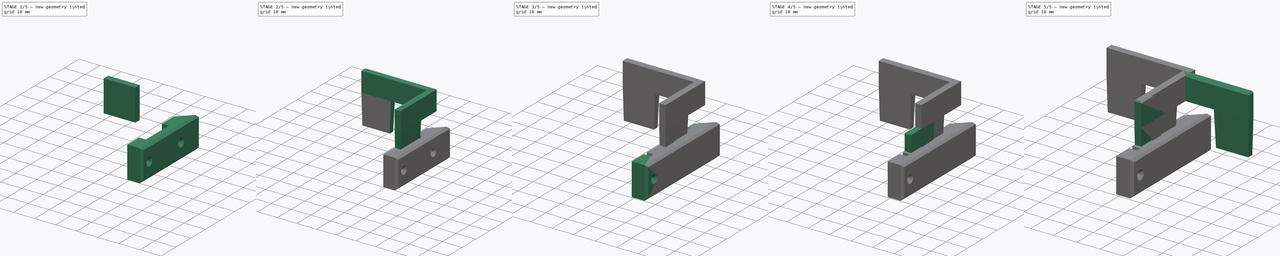
[diagram: build sequence overview — one tinted view per stage of 5, left to right]
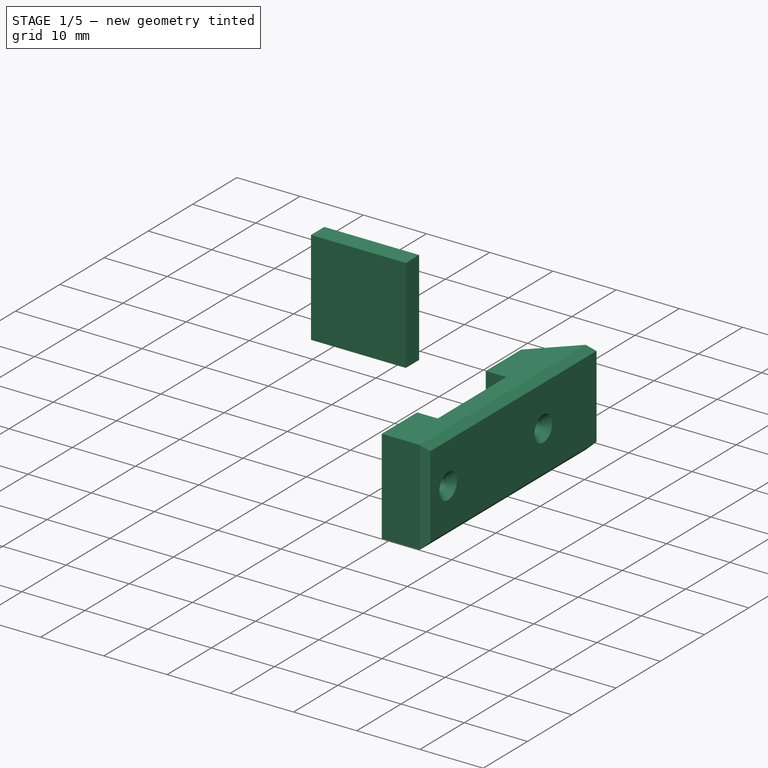
[diagram: stage 1 of 5 — iso view after this stage's code; geometry added in this stage tinted green]
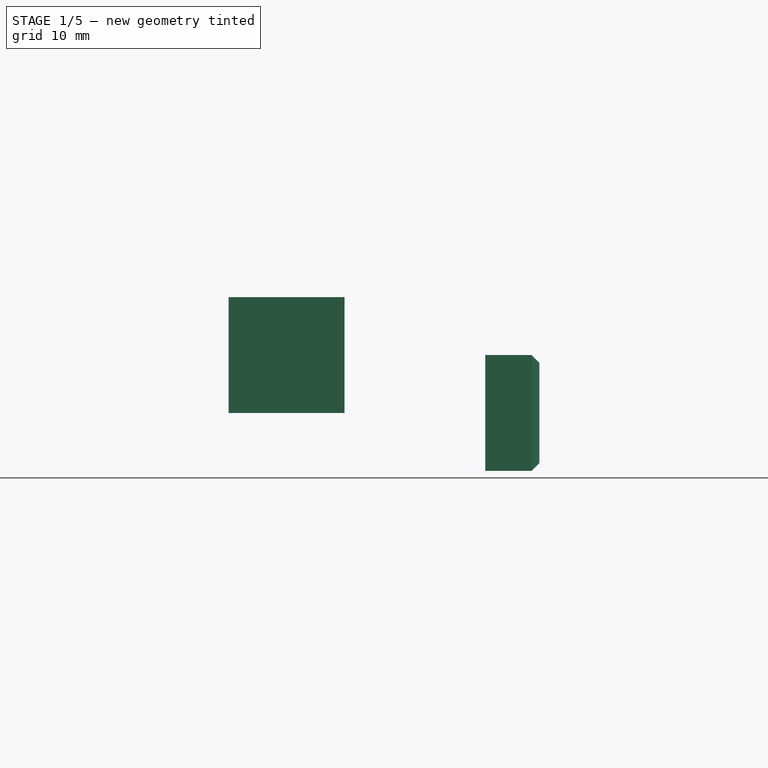
[diagram: stage 1 of 5 — front view after this stage's code; geometry added in this stage tinted green]
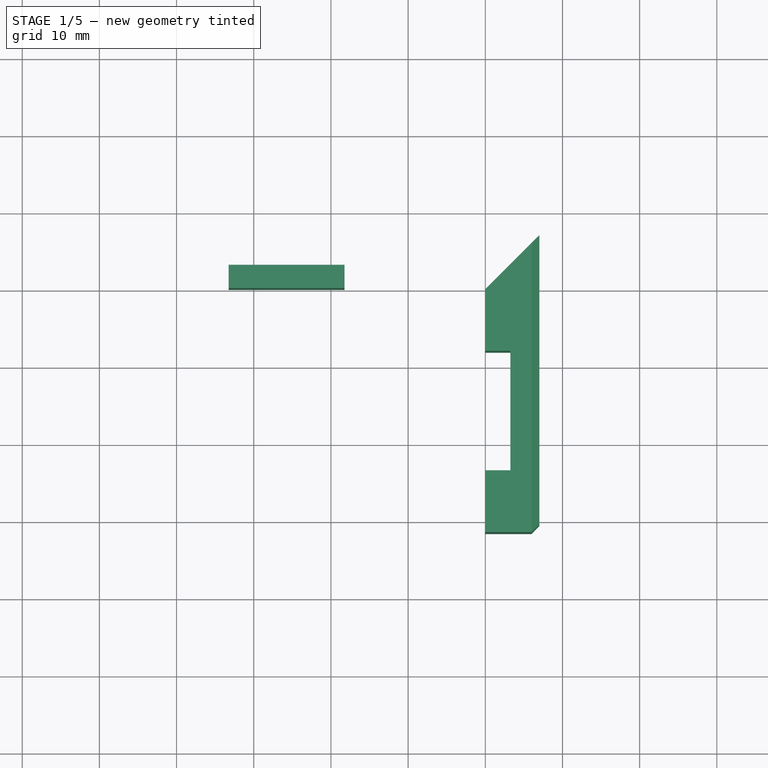
[diagram: stage 1 of 5 — top view after this stage's code; geometry added in this stage tinted green]
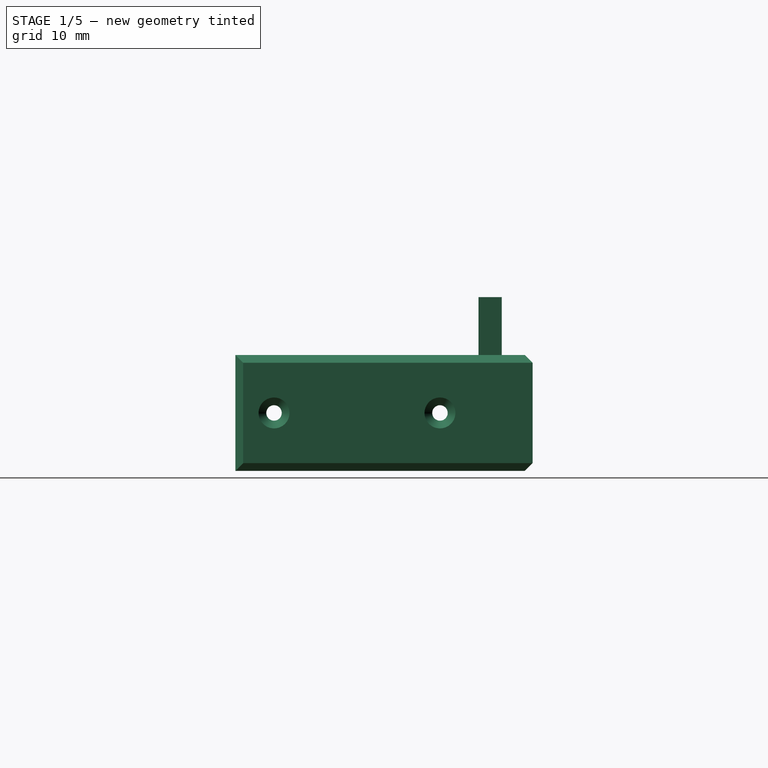
[diagram: stage 1 of 5 — right view after this stage's code; geometry added in this stage tinted green]
FCSTD DOCUMENT  (FreeCAD 0.19R23074 (Git))
Label: corner lock
License: All rights reserved
LicenseURL: http://en.wikipedia.org/wiki/All_rights_reserved
objects: Sketcher::SketchObject×12, PartDesign::Pad×9, PartDesign::Chamfer×6, PartDesign::Body×6, PartDesign::Pocket×3, PartDesign::Draft×3, Spreadsheet::Sheet×1, PartDesign::ShapeBinder×1, Part::Mirroring×1, Part::MultiFuse×1, Part::Chamfer×1, PartDesign::Boolean×1
note: 65 computed .brp shape members not serialized (recipe doc carries the construction recipe); baked Part::Feature solids carry a one-line shape summary decoded from their .brp

FEATURE [Sketcher::SketchObject] Sketch004
  MapMode = 5
  Support = -> [XY_Plane002]
  expr: Constraints[17] = <<dim>>.thickness
  expr: Constraints[18] = <<dim>>.flap_thickness + <<dim>>.flap_slack
  expr: Constraints[19] = <<dim>>.flap_width + 2 * <<dim>>.flap_slack
  expr: Constraints[20] = <<dim>>.mount_hole_d + 2 * <<dim>>.mount_hole_wall
  expr: Constraints[21] = <<dim>>.mount_hole_d + 2 * <<dim>>.mount_hole_wall
  sketch-geometry (8):
    g0: LineSegment StartX=-9e-16 StartY=-9e-16 StartZ=0 EndX=0 EndY=-8 EndZ=0
    g1: LineSegment StartX=0 StartY=-8 StartZ=0 EndX=3.25 EndY=-8 EndZ=0
    g2: LineSegment StartX=3.25 StartY=-8 StartZ=0 EndX=3.25 EndY=-23.5 EndZ=0
    g3: LineSegment StartX=3.25 StartY=-23.5 StartZ=0 EndX=0 EndY=-23.5 EndZ=0
    g4: LineSegment StartX=0 StartY=-23.5 StartZ=0 EndX=0 EndY=-31.5 EndZ=0
    g5: LineSegment StartX=0 StartY=-31.5 StartZ=0 EndX=7 EndY=-31.5 EndZ=0
    g6: LineSegment StartX=7 StartY=-31.5 StartZ=0 EndX=7 EndY=7 EndZ=0
    g7: LineSegment StartX=7 StartY=7 StartZ=0 EndX=-9e-16 EndY=-9e-16 EndZ=0
  constraints (23):
    c: Coincident(g-1,g0)
    c: PointOnObject(g0,g-2)
    c: Coincident(g0,g1)
    c: Horizontal(g1)
    c: Coincident(g1,g2)
    c: Vertical(g2)
    c: Coincident(g2,g3)
    c: PointOnObject(g3,g-2)
    c: Horizontal(g3)
    c: Coincident(g3,g4)
    c: PointOnObject(g4,g-2)
    c: Coincident(g4,g5)
    c: Horizontal(g5)
    c: Coincident(g5,g6)
    c: Vertical(g6)
    c: Coincident(g6,g7)
    c: Coincident(g7,g0)
    c: DistanceX(g5,g5) = 7
    c: DistanceX(g3,g3) = 3.25
    c: DistanceY(g2,g2) = 15.5
    c: DistanceY(g4,g4) = 8
    c: DistanceY(g0,g0) = 8
    c: Angle(g7) = -2.35619
FEATURE [PartDesign::Pad] Pad003
  Direction = (1,1,1)
  Length = 15
  Length2 = 100
  Midplane = true
  Profile = -> Sketch004
  Refine = true
  Type = 0
  expr: Length = <<dim>>.height
FEATURE [Sketcher::SketchObject] Sketch005
  ExternalGeometry = -> [Pad003]
  MapMode = 5
  Placement = pos=(7,0,0) rot=(0.57735,0.57735,0.57735;2.0944rad)
  Support = -> [Pad003]
  expr: Constraints[1] = <<dim>>.mount_hole_d + <<dim>>.mount_hole_wall
  expr: Constraints[5] = <<dim>>.mount_hole_d + <<dim>>.mount_hole_wall
  expr: Constraints[2] = <<dim>>.mount_hole_d
  sketch-geometry (2):
    g0: Circle CenterX=-26.5 CenterY=0 CenterZ=0 NormalX=0 NormalY=0 NormalZ=1 AngleXU=0 Radius=1
    g1: Circle CenterX=-5 CenterY=0 CenterZ=0 NormalX=0 NormalY=0 NormalZ=1 AngleXU=0 Radius=1
  constraints (6):
    c: PointOnObject(g0,g-1)
    c: DistanceX(g-3,g0) = 5
    c: Diameter(g0) = 2
    c: PointOnObject(g1,g-1)
    c: Equal(g1,g0)
    c: DistanceX(g1,g-5) = 5
FEATURE [PartDesign::Pocket] Pocket001
  BaseFeature = -> Pad003
  Length = 5
  Length2 = 100
  Profile = -> Sketch005
  Refine = true
  Type = 1
FEATURE [PartDesign::Chamfer] Chamfer003
  Angle = 45
  Base = -> Pocket001 [Edge25,Edge22]
  BaseFeature = -> Pocket001
  ChamferType = 0
  FlipDirection = false
  Refine = true
  Size = 1
  Size2 = 1
  SupportTransform = false
  expr: Size = <<dim>>.mount_hole_d / 2
FEATURE [PartDesign::Body] Body004
  Group = -> [Sketch008,Pad006,Sketch010,Draft001,Pad007]
  Origin = -> Origin004
  Tip = -> Pad007
FEATURE [Sketcher::SketchObject] Sketch011
  MapMode = 5
  Support = -> [XY_Plane006]
  expr: Constraints[9] = <<dim>>.flap_thickness
  expr: Constraints[10] = <<dim>>.flap_width
  expr: Constraints[11] = -(<<dim>>.wall_thickness + <<dim>>.mount_hole_d + 2 * <<dim>>.mount_hole_wall + <<dim>>.flap_slack)
  sketch-geometry (4):
    g0: LineSegment StartX=-33.25 StartY=0 StartZ=0 EndX=-18.25 EndY=0 EndZ=0
    g1: LineSegment StartX=-18.25 StartY=0 StartZ=0 EndX=-18.25 EndY=3 EndZ=0
    g2: LineSegment StartX=-18.25 StartY=3 StartZ=0 EndX=-33.25 EndY=3 EndZ=0
    g3: LineSegment StartX=-33.25 StartY=3 StartZ=0 EndX=-33.25 EndY=0 EndZ=0
  constraints (12):
    c: Coincident(g0,g1)
    c: Coincident(g1,g2)
    c: Coincident(g2,g3)
    c: Coincident(g3,g0)
    c: Horizontal(g0)
    c: Horizontal(g2)
    c: Vertical(g1)
    c: Vertical(g3)
    c: PointOnObject(g0,g-1)
    c: DistanceY(g1,g1) = 3
    c: DistanceX(g0,g0) = 15
    c: DistanceX(g0) = -18.25
FEATURE [PartDesign::Pad] Pad008
  Direction = (1,1,1)
  Length = 15
  Length2 = 100
  Profile = -> Sketch011
  Refine = true
  Type = 0
  expr: Length = <<dim>>.height
FEATURE [PartDesign::Body] Body005  label="outer corner lock"
  Group = -> [Sketch011,Pad008,Draft002,Sketch012,Pad009,Boolean]
  Origin = -> Origin005
  Tip = -> Boolean
FEATURE [PartDesign::Chamfer] Chamfer007
  Angle = 45
  Base = -> Chamfer003 [Edge12,Edge11,Edge13]
  BaseFeature = -> Chamfer003
  ChamferType = 0
  FlipDirection = false
  Refine = true
  Size = 1
  Size2 = 1
  SupportTransform = false
  expr: Size = <<dim>>.chamfer
FEATURE [PartDesign::Body] Body002  label="outer corner mount 1"
  Group = -> [Sketch004,Pad003,Sketch005,Pocket001,Chamfer003,Chamfer007]
  Origin = -> Origin002
  Tip = -> Chamfer007
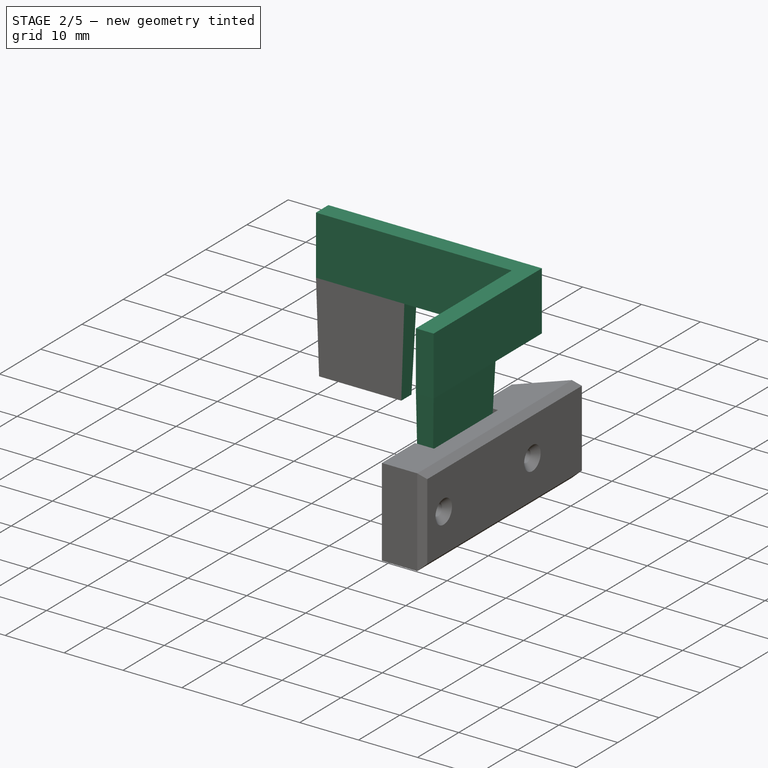
[diagram: stage 2 of 5 — iso view after this stage's code; geometry added in this stage tinted green]
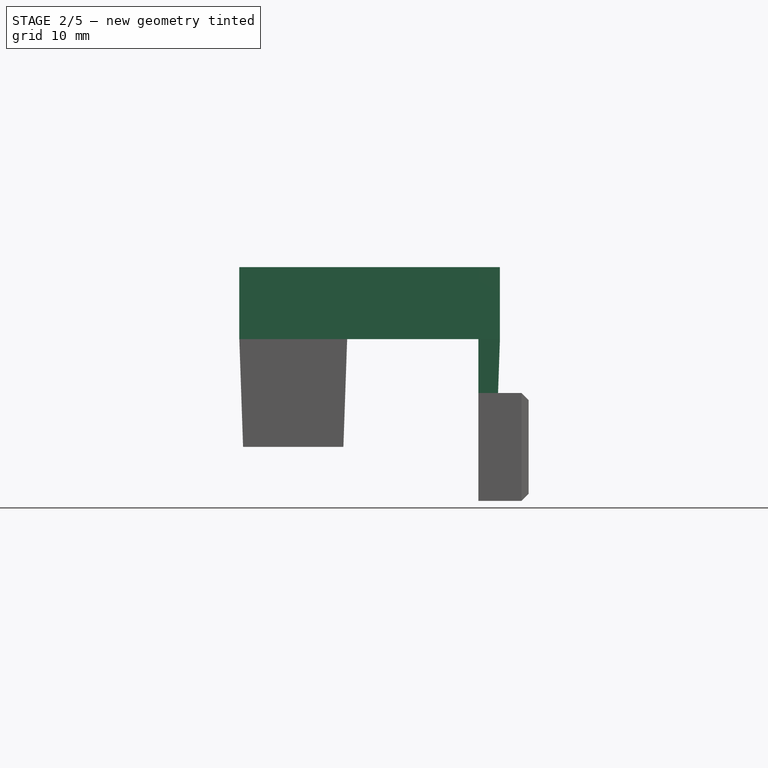
[diagram: stage 2 of 5 — front view after this stage's code; geometry added in this stage tinted green]
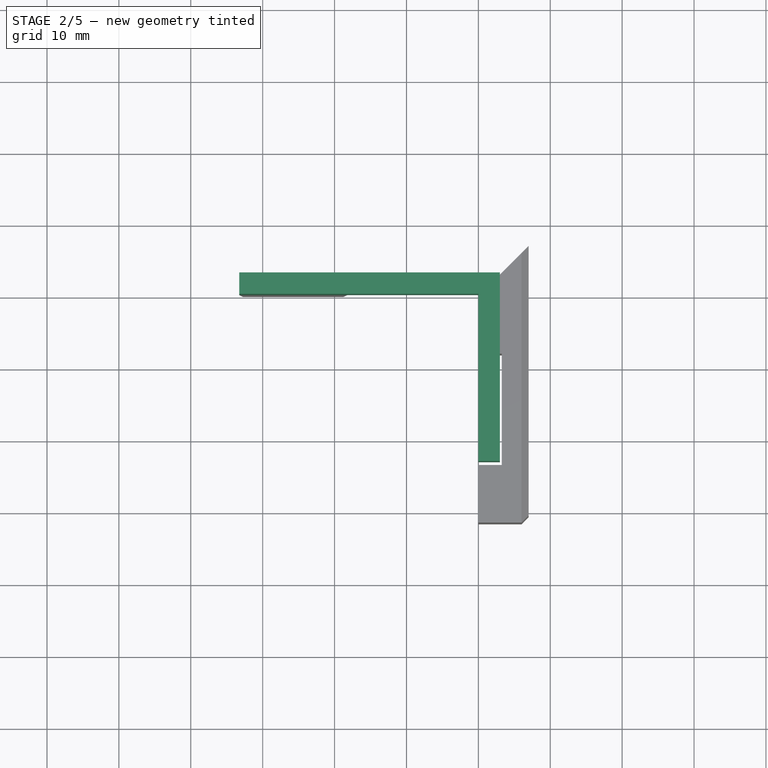
[diagram: stage 2 of 5 — top view after this stage's code; geometry added in this stage tinted green]
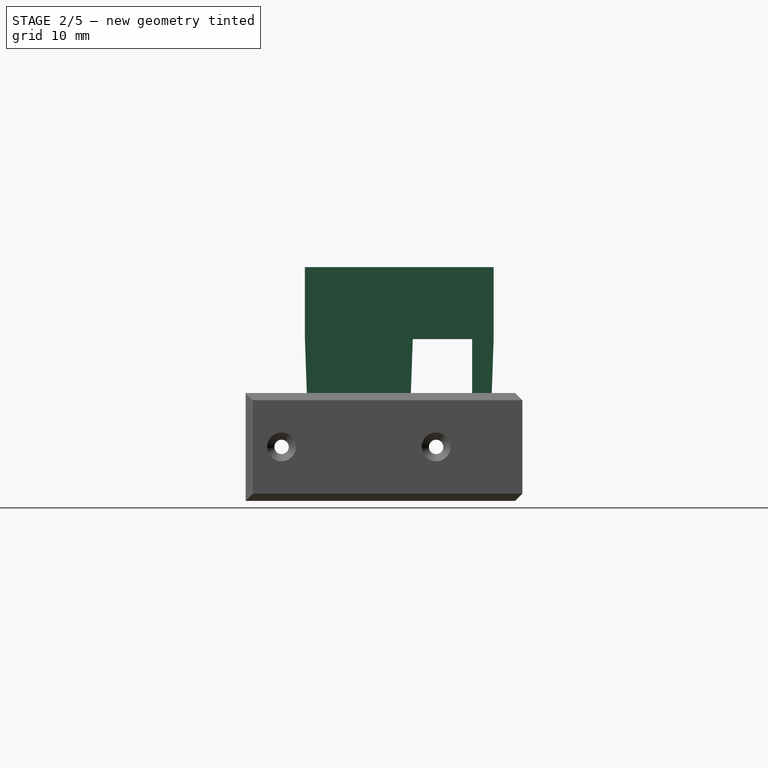
[diagram: stage 2 of 5 — right view after this stage's code; geometry added in this stage tinted green]
FEATURE [PartDesign::Body] Body003  label="outer corner mount 2"
  Group = -> [Sketch006,Pad004,Sketch007,Pocket002,Chamfer006,Chamfer005]
  Origin = -> Origin003
  Placement = pos=(0,0,0) rot=(0.707107,0.707107,0;3.14159rad)
  Tip = -> Chamfer005
FEATURE [Sketcher::SketchObject] Sketch008
  MapMode = 5
  Support = -> [XY_Plane005]
  expr: Constraints[9] = <<dim>>.mount_hole_d + 2 * <<dim>>.mount_hole_wall + <<dim>>.flap_slack
  expr: Constraints[10] = <<dim>>.flap_width
  expr: Constraints[11] = <<dim>>.flap_thickness
  sketch-geometry (4):
    g0: LineSegment StartX=0 StartY=-8.25 StartZ=0 EndX=3 EndY=-8.25 EndZ=0
    g1: LineSegment StartX=3 StartY=-8.25 StartZ=0 EndX=3 EndY=-23.25 EndZ=0
    g2: LineSegment StartX=3 StartY=-23.25 StartZ=0 EndX=0 EndY=-23.25 EndZ=0
    g3: LineSegment StartX=0 StartY=-23.25 StartZ=0 EndX=0 EndY=-8.25 EndZ=0
  constraints (12):
    c: Coincident(g0,g1)
    c: Coincident(g1,g2)
    c: Coincident(g2,g3)
    c: Coincident(g3,g0)
    c: Horizontal(g0)
    c: Horizontal(g2)
    c: Vertical(g1)
    c: Vertical(g3)
    c: PointOnObject(g0,g-2)
    c: DistanceY(g0,g-1) = 8.25
    c: DistanceY(g3,g3) = 15
    c: DistanceX(g2,g2) = 3
FEATURE [PartDesign::Pad] Pad006
  Direction = (1,1,1)
  Length = 15
  Length2 = 100
  Profile = -> Sketch008
  Refine = true
  Type = 0
  expr: Length = <<dim>>.height
FEATURE [Sketcher::SketchObject] Sketch010
  ExternalGeometry = -> [Pad006]
  MapMode = 5
  Placement = pos=(0,0,15) rot=(0,0,1;0rad)
  expr: Constraints[4] = <<dim>>.flap_thickness
  sketch-geometry (4):
    g0: LineSegment StartX=0 StartY=0 StartZ=0 EndX=0 EndY=-23.25 EndZ=0
    g1: LineSegment StartX=0 StartY=-23.25 StartZ=0 EndX=3 EndY=-23.25 EndZ=0
    g2: LineSegment StartX=3 StartY=-23.25 StartZ=0 EndX=3 EndY=3 EndZ=0
    g3: LineSegment StartX=0 StartY=0 StartZ=0 EndX=3 EndY=3 EndZ=0
  constraints (10):
    c: Coincident(g-1,g0)
    c: Coincident(g0,g1)
    c: Coincident(g1,g2)
    c: Vertical(g2)
    c: DistanceX(g1,g1) = 3
    c: Horizontal(g1)
    c: Coincident(g0,g-3)
    c: Coincident(g3,g0)
    c: Coincident(g3,g2)
    c: Angle(g3) = 0.785398
FEATURE [PartDesign::Draft] Draft001
  Angle = 2
  Base = -> Pad006 [Face1,Face2,Face3]
  BaseFeature = -> Pad006
  NeutralPlane = -> Pad006 [Face6]
  Refine = true
  SupportTransform = false
FEATURE [PartDesign::Pad] Pad007
  BaseFeature = -> Draft001
  Direction = (1,1,1)
  Length = 10
  Length2 = 100
  Profile = -> Sketch010
  Refine = true
  Type = 0
  expr: Length = <<dim>>.flap_connector_height
FEATURE [PartDesign::Draft] Draft002
  Angle = 2
  Base = -> Pad008 [Face4,Face2,Face3]
  BaseFeature = -> Pad008
  NeutralPlane = -> Pad008 [Face6]
  Refine = true
  Reversed = true
  SupportTransform = false
FEATURE [Sketcher::SketchObject] Sketch012
  ExternalGeometry = -> [Draft002]
  MapMode = 5
  Placement = pos=(0,0,15) rot=(0,0,1;0rad)
  Support = -> [Draft002]
  sketch-geometry (4):
    g0: LineSegment StartX=3 StartY=3 StartZ=0 EndX=-33.25 EndY=3 EndZ=0
    g1: LineSegment StartX=-33.25 StartY=3 StartZ=0 EndX=-33.25 EndY=0 EndZ=0
    g2: LineSegment StartX=-33.25 StartY=0 StartZ=0 EndX=0 EndY=0 EndZ=0
    g3: LineSegment StartX=0 StartY=0 StartZ=0 EndX=3 EndY=3 EndZ=0
  constraints (9):
    c: Coincident(g0,g-3)
    c: Horizontal(g0)
    c: Coincident(g0,g1)
    c: Coincident(g1,g-3)
    c: Coincident(g1,g2)
    c: Coincident(g2,g-1)
    c: Coincident(g2,g3)
    c: Angle(g3) = 0.785398
    c: Coincident(g0,g3)
FEATURE [PartDesign::Pad] Pad009
  BaseFeature = -> Draft002
  Direction = (1,1,1)
  Length = 10
  Length2 = 100
  Profile = -> Sketch012
  Refine = true
  Type = 0
  expr: Length = <<dim>>.flap_connector_height
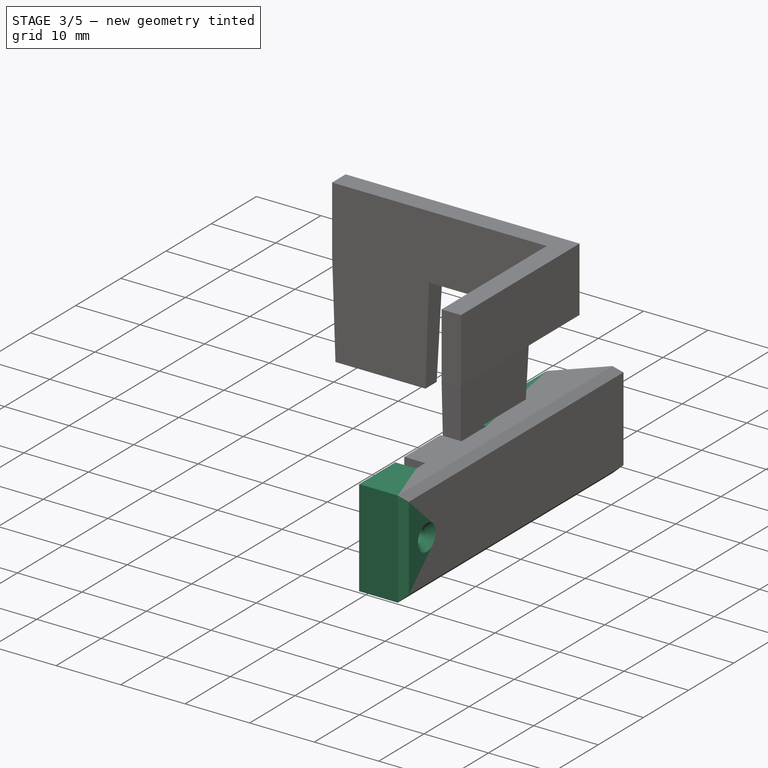
[diagram: stage 3 of 5 — iso view after this stage's code; geometry added in this stage tinted green]
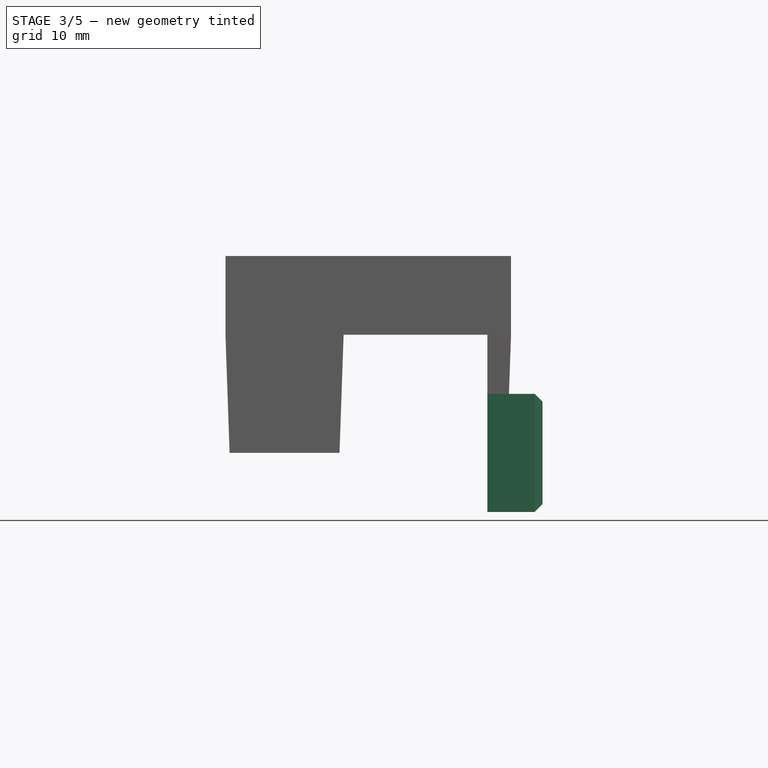
[diagram: stage 3 of 5 — front view after this stage's code; geometry added in this stage tinted green]
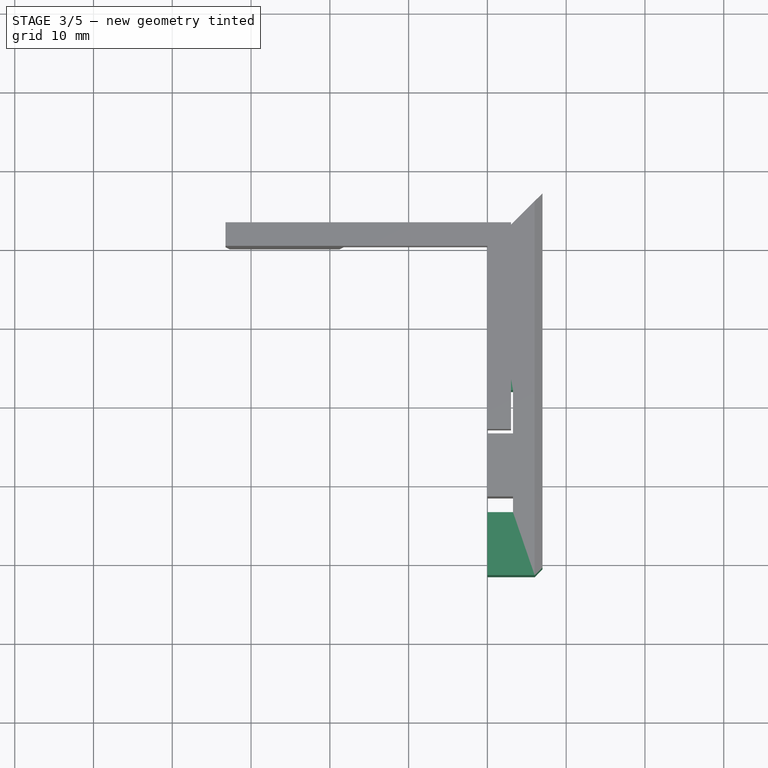
[diagram: stage 3 of 5 — top view after this stage's code; geometry added in this stage tinted green]
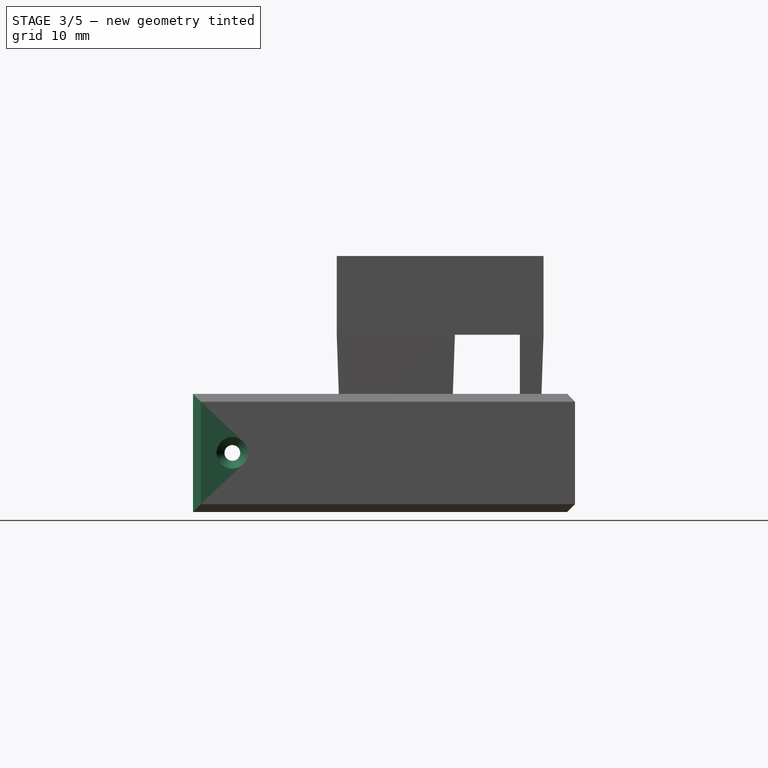
[diagram: stage 3 of 5 — right view after this stage's code; geometry added in this stage tinted green]
FEATURE [Sketcher::SketchObject] Sketch006
  MapMode = 5
  Support = -> [XY_Plane003]
  expr: Constraints[21] = <<dim>>.mount_hole_d + 2 * <<dim>>.mount_hole_wall + <<dim>>.wall_thickness
  expr: Constraints[20] = <<dim>>.mount_hole_d + 2 * <<dim>>.mount_hole_wall
  expr: Constraints[19] = <<dim>>.flap_width + 2 * <<dim>>.flap_slack
  expr: Constraints[18] = <<dim>>.flap_thickness + <<dim>>.flap_slack
  expr: Constraints[17] = <<dim>>.thickness
  sketch-geometry (8):
    g0: LineSegment StartX=0 StartY=0 StartZ=0 EndX=0 EndY=-18 EndZ=0
    g1: LineSegment StartX=0 StartY=-18 StartZ=0 EndX=3.25 EndY=-18 EndZ=0
    g2: LineSegment StartX=3.25 StartY=-18 StartZ=0 EndX=3.25 EndY=-33.5 EndZ=0
    g3: LineSegment StartX=3.25 StartY=-33.5 StartZ=0 EndX=0 EndY=-33.5 EndZ=0
    g4: LineSegment StartX=0 StartY=-33.5 StartZ=0 EndX=0 EndY=-41.5 EndZ=0
    g5: LineSegment StartX=0 StartY=-41.5 StartZ=0 EndX=7 EndY=-41.5 EndZ=0
    g6: LineSegment StartX=7 StartY=-41.5 StartZ=0 EndX=7 EndY=7 EndZ=0
    g7: LineSegment StartX=7 StartY=7 StartZ=0 EndX=0 EndY=0 EndZ=0
  constraints (23):
    c: Coincident(g-1,g0)
    c: PointOnObject(g0,g-2)
    c: Coincident(g0,g1)
    c: Horizontal(g1)
    c: Coincident(g1,g2)
    c: Vertical(g2)
    c: Coincident(g2,g3)
    c: PointOnObject(g3,g-2)
    c: Horizontal(g3)
    c: Coincident(g3,g4)
    c: PointOnObject(g4,g-2)
    c: Coincident(g4,g5)
    c: Horizontal(g5)
    c: Coincident(g5,g6)
    c: Vertical(g6)
    c: Coincident(g6,g7)
    c: Coincident(g7,g0)
    c: DistanceX(g5,g5) = 7
    c: DistanceX(g3,g3) = 3.25
    c: DistanceY(g2,g2) = 15.5
    c: DistanceY(g4,g4) = 8
    c: DistanceY(g0,g0) = 18
    c: Angle(g7) = -2.35619
FEATURE [PartDesign::Pad] Pad004
  Direction = (1,1,1)
  Length = 15
  Length2 = 100
  Midplane = true
  Profile = -> Sketch006
  Refine = true
  Type = 0
  expr: Length = <<dim>>.height
FEATURE [Sketcher::SketchObject] Sketch007
  ExternalGeometry = -> [Pad004]
  MapMode = 5
  Placement = pos=(7,0,0) rot=(0.57735,0.57735,0.57735;2.0944rad)
  Support = -> [Pad004]
  expr: Constraints[5] = <<dim>>.mount_hole_d + <<dim>>.mount_hole_wall + <<dim>>.wall_thickness
  expr: Constraints[2] = <<dim>>.mount_hole_d
  expr: Constraints[1] = <<dim>>.mount_hole_d + <<dim>>.mount_hole_wall
  sketch-geometry (2):
    g0: Circle CenterX=-36.5 CenterY=0 CenterZ=0 NormalX=0 NormalY=0 NormalZ=1 AngleXU=0 Radius=1
    g1: Circle CenterX=-15 CenterY=0 CenterZ=0 NormalX=0 NormalY=0 NormalZ=1 AngleXU=0 Radius=1
  constraints (6):
    c: PointOnObject(g0,g-1)
    c: DistanceX(g-3,g0) = 5
    c: Diameter(g0) = 2
    c: PointOnObject(g1,g-1)
    c: Equal(g1,g0)
    c: DistanceX(g1,g-5) = 15
FEATURE [PartDesign::Pocket] Pocket002
  BaseFeature = -> Pad004
  Length = 5
  Length2 = 100
  Profile = -> Sketch007
  Refine = true
  Type = 1
FEATURE [PartDesign::Chamfer] Chamfer006
  Angle = 45
  Base = -> Pocket002 [Edge25,Edge22]
  BaseFeature = -> Pocket002
  ChamferType = 0
  FlipDirection = false
  Refine = true
  Size = 1
  Size2 = 1
  SupportTransform = false
  expr: Size = <<dim>>.mount_hole_d / 2
FEATURE [PartDesign::Chamfer] Chamfer005
  Angle = 45
  Base = -> Chamfer006 [Edge13,Edge11,Edge12]
  BaseFeature = -> Chamfer006
  ChamferType = 0
  FlipDirection = false
  Refine = true
  Size = 1
  Size2 = 1
  SupportTransform = false
  expr: Size = <<dim>>.chamfer
FEATURE [PartDesign::Boolean] Boolean
  BaseFeature = -> Pad009
  Group = -> [Body004]
  Refine = true
  Type = 0
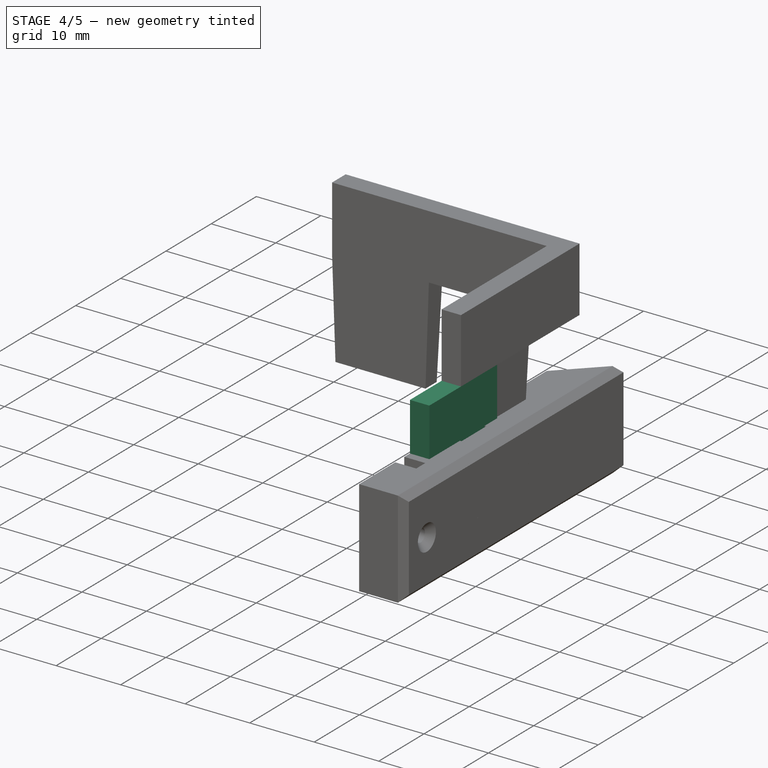
[diagram: stage 4 of 5 — iso view after this stage's code; geometry added in this stage tinted green]
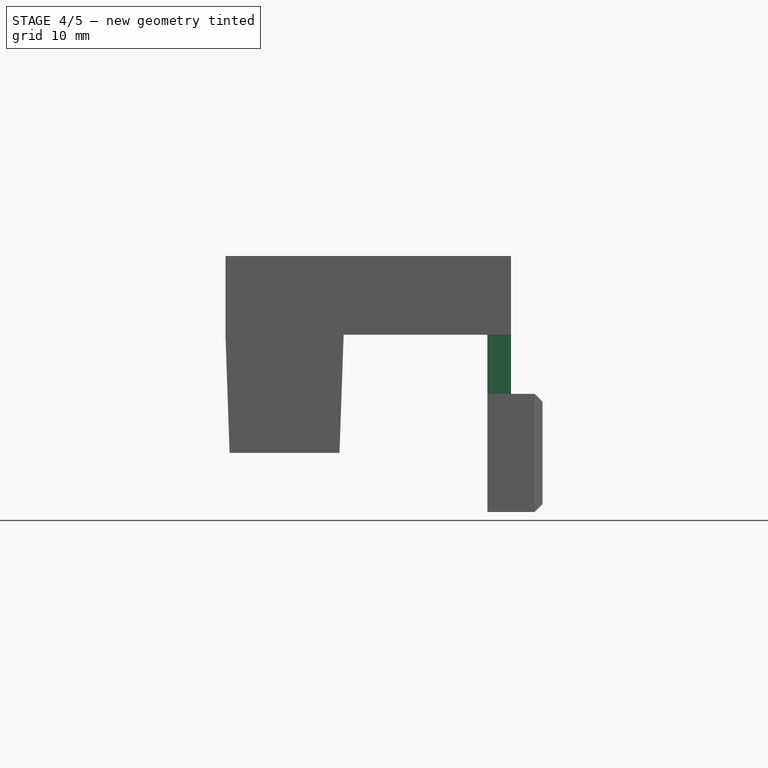
[diagram: stage 4 of 5 — front view after this stage's code; geometry added in this stage tinted green]
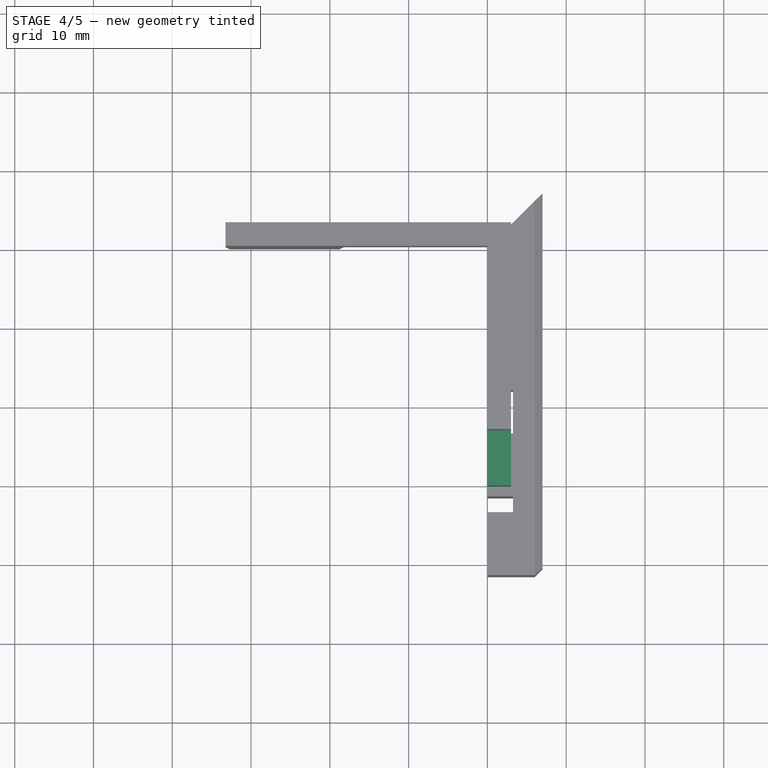
[diagram: stage 4 of 5 — top view after this stage's code; geometry added in this stage tinted green]
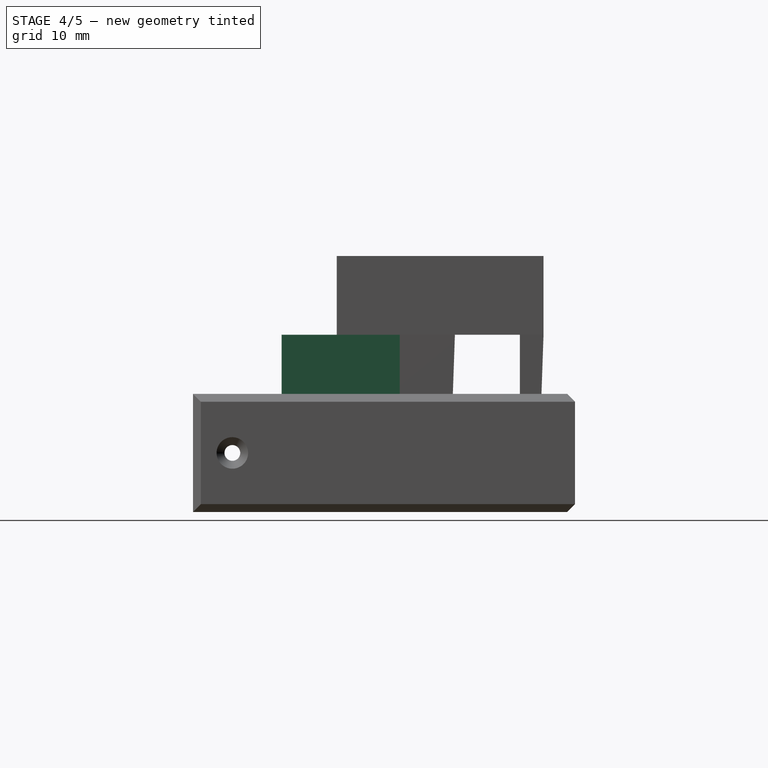
[diagram: stage 4 of 5 — right view after this stage's code; geometry added in this stage tinted green]
FEATURE [Spreadsheet::Sheet] Spreadsheet  label="dim"
  cells = A2=thickness; B2(thickness)=7; A3=height; B3(height)=15; A5=flap_width; B5(flap_width)=15; A6=flap_thickness; B6(flap_thickness)=3; A7=flap_slack; B7(flap_slack)=0.25; A8=flap_connector_height; B8(flap_connector_height)=10; A10=mount_hole_d; B10(mount_hole_d)=2; A11=mount_hole_wall; B11(mount_hole_wall)=3; A13=chamfer; B13(chamfer)=1; A15=wall_thickness; B15(wall_thickness)=10
FEATURE [Sketcher::SketchObject] Sketch
  MapMode = 5
  Support = -> [XY_Plane]
  expr: Constraints[22] = <<dim>>.mount_hole_d + 2 * <<dim>>.mount_hole_wall
  expr: Constraints[21] = <<dim>>.mount_hole_d + 2 * <<dim>>.mount_hole_wall
  expr: Constraints[20] = <<dim>>.flap_width + 2 * <<dim>>.flap_slack
  expr: Constraints[19] = <<dim>>.flap_thickness + <<dim>>.flap_slack
  expr: Constraints[18] = <<dim>>.thickness
  sketch-geometry (8):
    g0: LineSegment StartX=0 StartY=0 StartZ=0 EndX=0 EndY=-15 EndZ=0
    g1: LineSegment StartX=0 StartY=-15 StartZ=0 EndX=3.25 EndY=-15 EndZ=0
    g2: LineSegment StartX=3.25 StartY=-15 StartZ=0 EndX=3.25 EndY=-30.5 EndZ=0
    g3: LineSegment StartX=3.25 StartY=-30.5 StartZ=0 EndX=0 EndY=-30.5 EndZ=0
    g4: LineSegment StartX=0 StartY=-30.5 StartZ=0 EndX=0 EndY=-38.5 EndZ=0
    g5: LineSegment StartX=0 StartY=-38.5 StartZ=0 EndX=7 EndY=-38.5 EndZ=0
    g6: LineSegment StartX=7 StartY=-38.5 StartZ=0 EndX=7 EndY=-7 EndZ=0
    g7: LineSegment StartX=7 StartY=-7 StartZ=0 EndX=0 EndY=0 EndZ=0
  constraints (23):
    c: Coincident(g-1,g0)
    c: PointOnObject(g0,g-2)
    c: Coincident(g0,g1)
    c: Horizontal(g1)
    c: Coincident(g1,g2)
    c: Vertical(g2)
    c: Coincident(g2,g3)
    c: PointOnObject(g3,g-2)
    c: Horizontal(g3)
    c: Coincident(g3,g4)
    c: PointOnObject(g4,g-2)
    c: Coincident(g4,g5)
    c: Horizontal(g5)
    c: Coincident(g5,g6)
    c: Vertical(g6)
    c: Coincident(g6,g7)
    c: Coincident(g7,g0)
    c: Angle(g7) = 2.35619
    c: DistanceX(g5,g5) = 7
    c: DistanceX(g3,g3) = 3.25
    c: DistanceY(g2,g2) = 15.5
    c: DistanceY(g4,g4) = 8
    c: DistanceY(g1,g6) = 8
FEATURE [PartDesign::Pad] Pad
  Direction = (1,1,1)
  Length = 15
  Length2 = 100
  Midplane = true
  Profile = -> Sketch
  Refine = true
  Type = 0
  expr: Length = <<dim>>.height
FEATURE [Sketcher::SketchObject] Sketch001
  ExternalGeometry = -> [Pad]
  MapMode = 5
  Placement = pos=(7,0,0) rot=(0.57735,0.57735,0.57735;2.0944rad)
  Support = -> [Pad]
  expr: Constraints[5] = <<dim>>.mount_hole_d + <<dim>>.mount_hole_wall
  expr: Constraints[2] = <<dim>>.mount_hole_d
  expr: Constraints[1] = <<dim>>.mount_hole_d + <<dim>>.mount_hole_wall
  sketch-geometry (2):
    g0: Circle CenterX=-33.5 CenterY=0 CenterZ=0 NormalX=0 NormalY=0 NormalZ=1 AngleXU=0 Radius=1
    g1: Circle CenterX=-12 CenterY=0 CenterZ=0 NormalX=0 NormalY=0 NormalZ=1 AngleXU=0 Radius=1
  constraints (6):
    c: PointOnObject(g0,g-1)
    c: DistanceX(g-3,g0) = 5
    c: Diameter(g0) = 2
    c: PointOnObject(g1,g-1)
    c: Equal(g1,g0)
    c: DistanceX(g1,g-4) = 5
FEATURE [PartDesign::Pocket] Pocket
  BaseFeature = -> Pad
  Length = 5
  Length2 = 100
  Profile = -> Sketch001
  Refine = true
  Type = 1
FEATURE [PartDesign::Chamfer] Chamfer
  Angle = 45
  Base = -> Pocket [Edge22,Edge25]
  BaseFeature = -> Pocket
  ChamferType = 0
  FlipDirection = false
  Refine = true
  Size = 1
  Size2 = 1
  SupportTransform = false
  expr: Size = <<dim>>.mount_hole_d / 2
FEATURE [PartDesign::Chamfer] Chamfer001
  Angle = 45
  Base = -> Chamfer [Edge12,Edge10,Edge11]
  BaseFeature = -> Chamfer
  ChamferType = 0
  FlipDirection = false
  Refine = true
  Size = 1
  Size2 = 1
  SupportTransform = false
  expr: Size = <<dim>>.chamfer
FEATURE [PartDesign::Body] Body  label="inner corner mount"
  Group = -> [Sketch,Pad,Sketch001,Pocket,Chamfer,Chamfer001]
  Origin = -> Origin
  Tip = -> Chamfer001
FEATURE [PartDesign::ShapeBinder] ShapeBinder
  Placement = pos=(0,0,7.5) rot=(0,0,1;0rad)
  Support = -> [Chamfer001]
  TraceSupport = false
FEATURE [Sketcher::SketchObject] Sketch002
  ExternalGeometry = -> [ShapeBinder]
  MapMode = 5
  Support = -> [XY_Plane001]
  expr: Constraints[11] = <<dim>>.flap_slack
  expr: Constraints[10] = <<dim>>.flap_slack
  expr: Constraints[9] = <<dim>>.flap_slack
  sketch-geometry (4):
    g0: LineSegment StartX=0 StartY=-15.25 StartZ=0 EndX=3 EndY=-15.25 EndZ=0
    g1: LineSegment StartX=3 StartY=-15.25 StartZ=0 EndX=3 EndY=-30.25 EndZ=0
    g2: LineSegment StartX=3 StartY=-30.25 StartZ=0 EndX=0 EndY=-30.25 EndZ=0
    g3: LineSegment StartX=0 StartY=-30.25 StartZ=0 EndX=0 EndY=-15.25 EndZ=0
  constraints (12):
    c: Coincident(g0,g1)
    c: Coincident(g1,g2)
    c: Coincident(g2,g3)
    c: Coincident(g3,g0)
    c: Horizontal(g0)
    c: Horizontal(g2)
    c: Vertical(g1)
    c: Vertical(g3)
    c: PointOnObject(g0,g-2)
    c: DistanceY(g0,g-3) = 0.25
    c: DistanceY(g-4,g2) = 0.25
    c: DistanceX(g1,g-4) = 0.25
FEATURE [PartDesign::Pad] Pad001
  Direction = (1,1,1)
  Length = 15
  Length2 = 100
  Profile = -> Sketch002
  Refine = true
  Type = 0
  expr: Length = <<dim>>.height
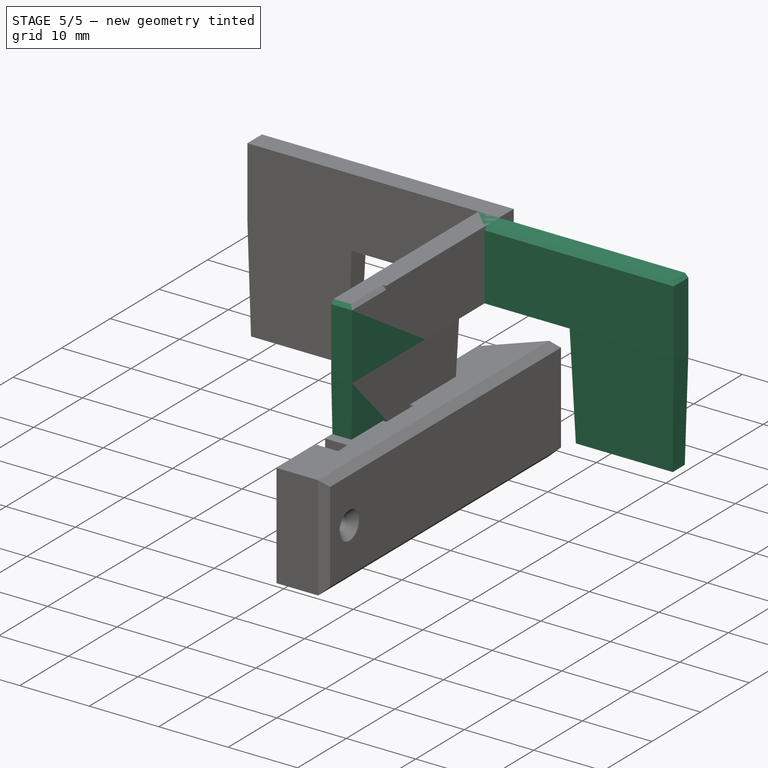
[diagram: stage 5 of 5 — iso view after this stage's code; geometry added in this stage tinted green]
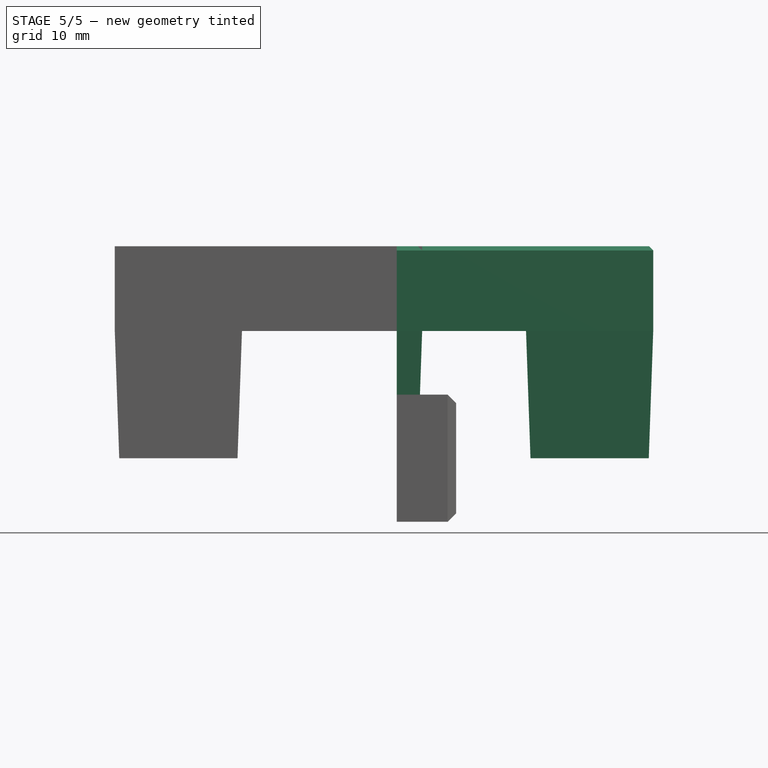
[diagram: stage 5 of 5 — front view after this stage's code; geometry added in this stage tinted green]
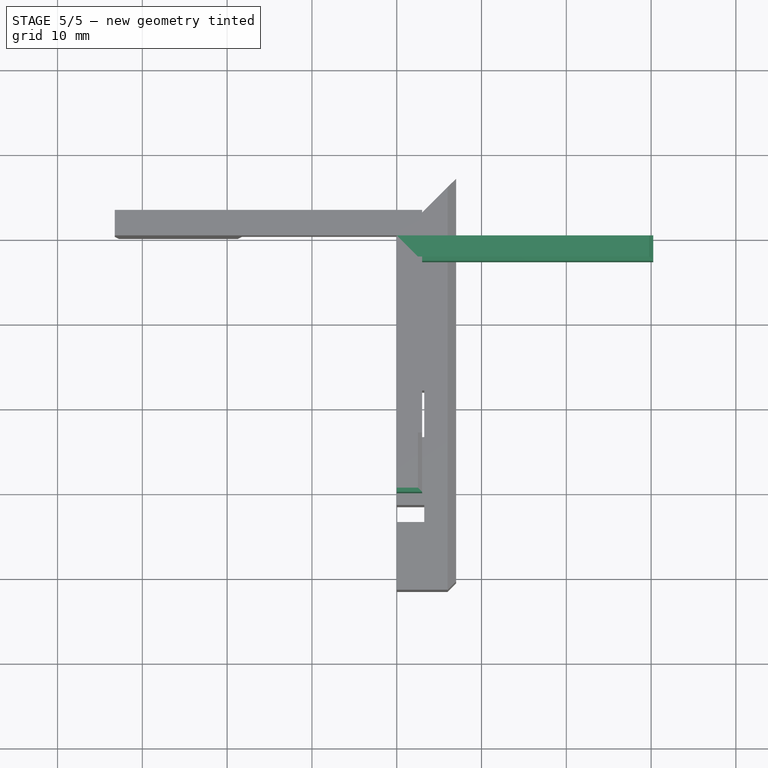
[diagram: stage 5 of 5 — top view after this stage's code; geometry added in this stage tinted green]
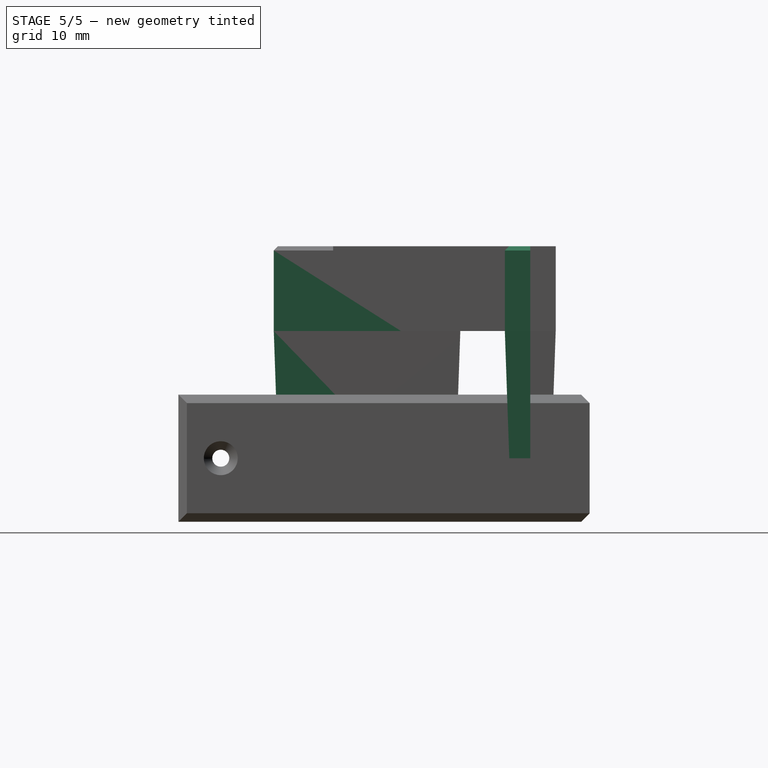
[diagram: stage 5 of 5 — right view after this stage's code; geometry added in this stage tinted green]
FEATURE [PartDesign::Draft] Draft
  Angle = 2
  Base = -> Pad001 [Face1,Face3,Face2]
  BaseFeature = -> Pad001
  NeutralPlane = -> Pad001 [Face6]
  Refine = true
  SupportTransform = false
FEATURE [Sketcher::SketchObject] Sketch003
  ExternalGeometry = -> [Draft]
  MapMode = 5
  Placement = pos=(0,0,15) rot=(0,0,1;0rad)
  Support = -> [Draft]
  sketch-geometry (4):
    g0: LineSegment StartX=0 StartY=0 StartZ=0 EndX=0 EndY=-30.25 EndZ=0
    g1: LineSegment StartX=0 StartY=-30.25 StartZ=0 EndX=3 EndY=-30.25 EndZ=0
    g2: LineSegment StartX=3 StartY=-30.25 StartZ=0 EndX=3 EndY=-3 EndZ=0
    g3: LineSegment StartX=3 StartY=-3 StartZ=0 EndX=0 EndY=0 EndZ=0
  constraints (9):
    c: Coincident(g-1,g0)
    c: Coincident(g0,g-3)
    c: Coincident(g0,g1)
    c: Coincident(g1,g-3)
    c: Coincident(g1,g2)
    c: Vertical(g2)
    c: Coincident(g2,g3)
    c: Coincident(g3,g0)
    c: Angle(g3) = 2.35619
FEATURE [PartDesign::Pad] Pad002
  BaseFeature = -> Draft
  Direction = (1,1,1)
  Length = 10
  Length2 = 100
  Profile = -> Sketch003
  Refine = true
  Type = 0
  expr: Length = <<dim>>.flap_connector_height
FEATURE [PartDesign::Body] Body001
  Group = -> [Sketch002,ShapeBinder,Pad001,Draft,Sketch003,Pad002]
  Origin = -> Origin001
  Tip = -> Pad002
FEATURE [Part::Mirroring] mirror  label="Pad002 (mirrored)"
  Base = (0,0,0)
  Normal = (1,0,0)
  Placement = pos=(0,0,0) rot=(0,0,1;1.5708rad)
  Source = -> Pad002
FEATURE [Part::MultiFuse] Fusion
  Refine = true
  Shapes = -> [Body001,mirror]
FEATURE [Part::Chamfer] Chamfer002  label="inner corner lock"
  Base = -> Fusion
  Edges = 4 edges r=0.5: [Edge17,Edge26,Edge31,Edge38]
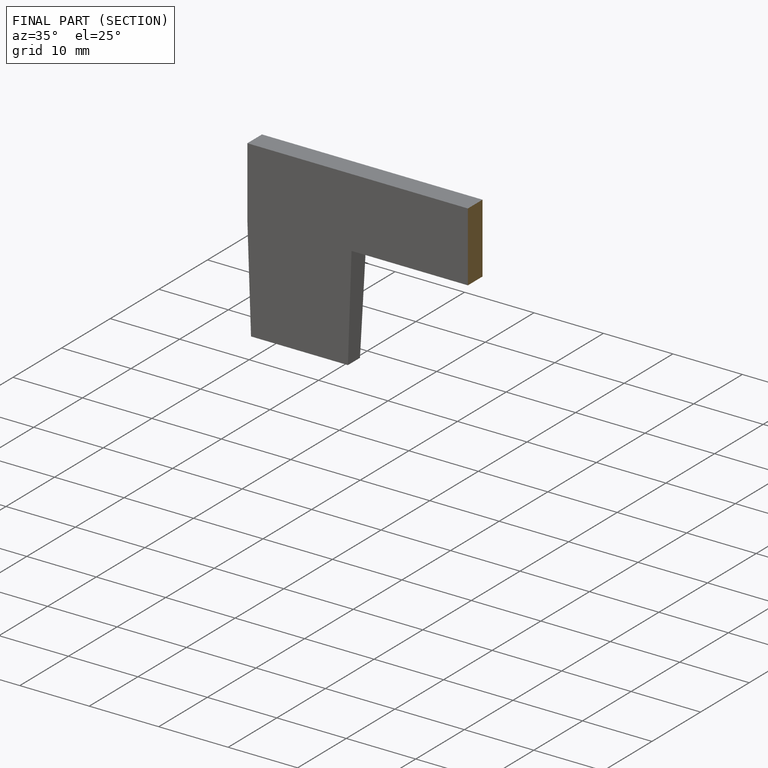
[diagram: finished part — half-section view (interior)]
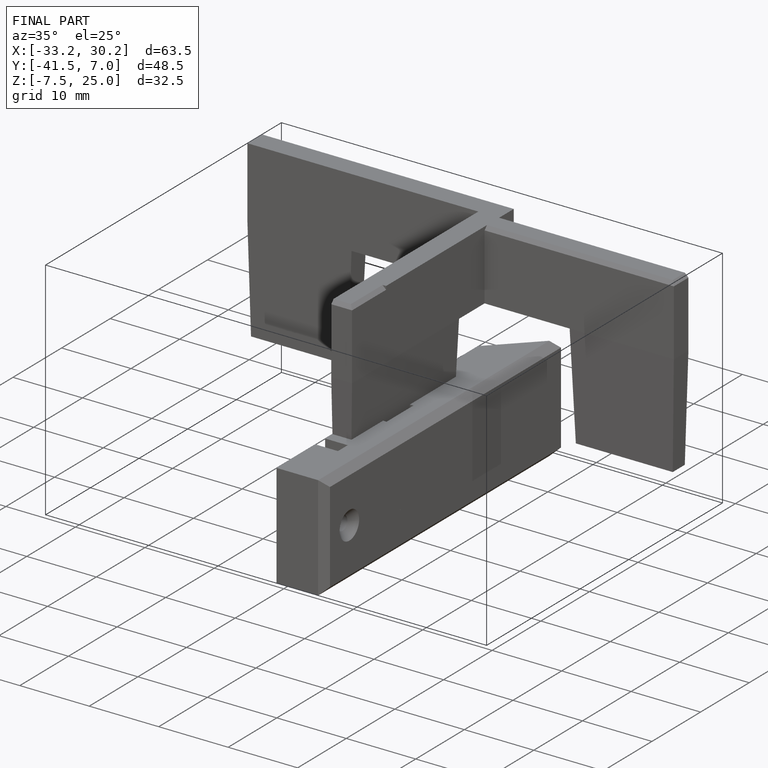
[diagram: finished part — iso view with bounding-box wireframe]
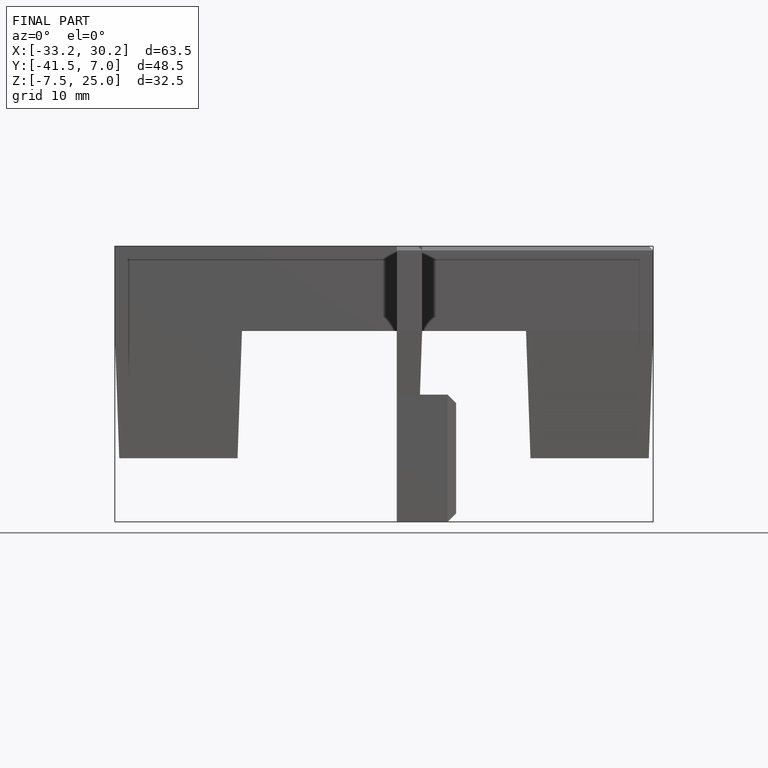
[diagram: finished part — front view with bounding-box wireframe]
